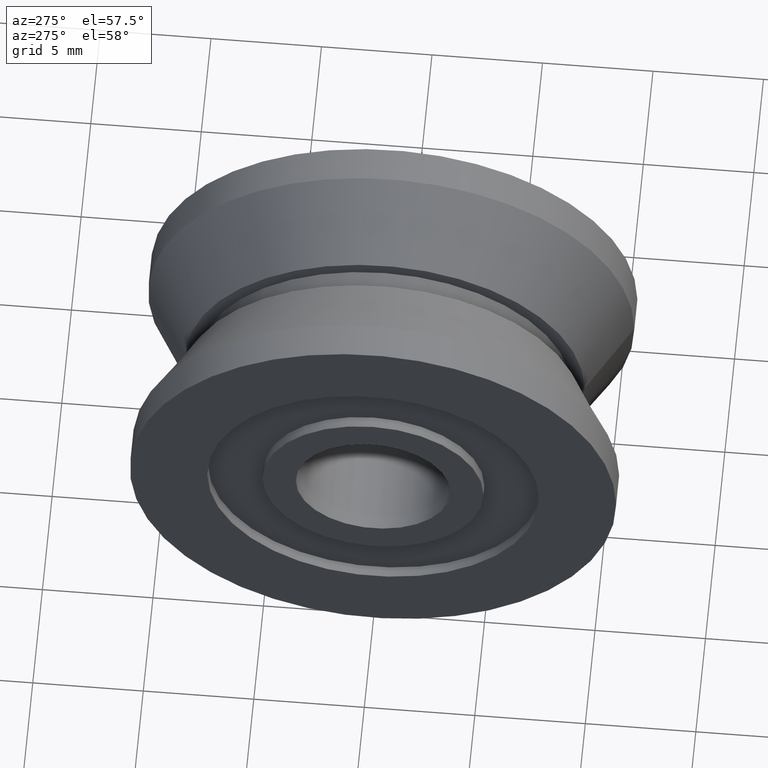
[diagram: clean part render]
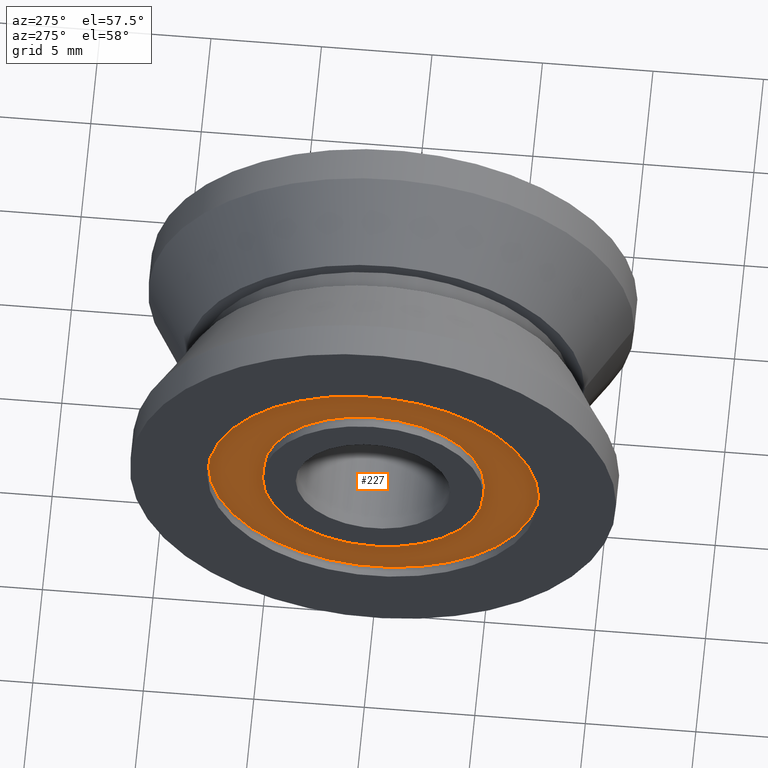
[diagram: same view with one face highlighted and labeled with its STEP entity id]
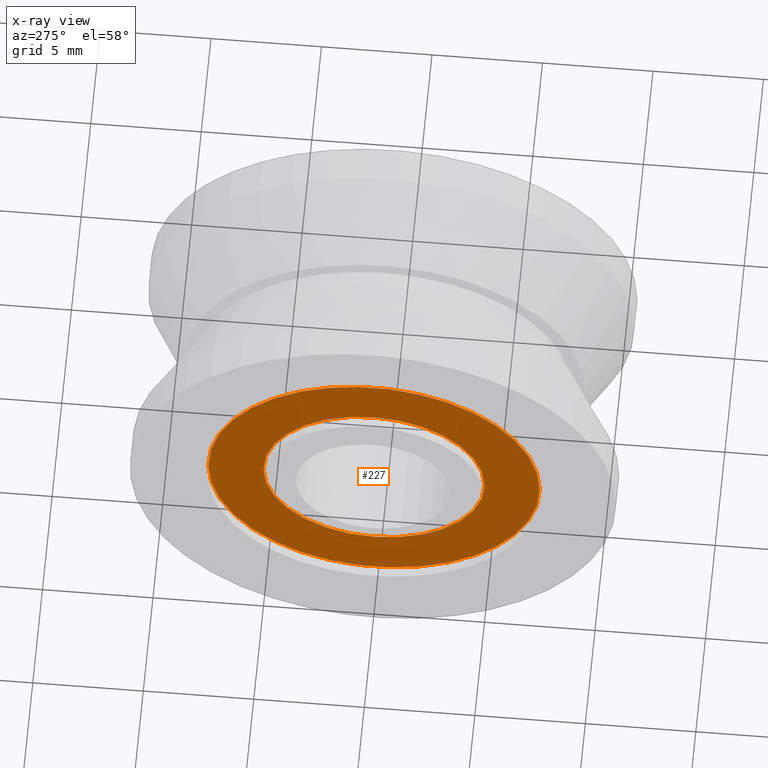
[diagram: x-ray of the same camera — body ghosted, the highlighted face saturated]
A machine part, auxiliary view. The second image highlights one B-rep face of the part: STEP entity #227.
The next image is the same camera in x-ray: the body ghosted, the highlighted face saturated — about 0% of this face is hidden behind the body in this view.
In plain terms, the highlighted planar face has unit normal (-1, 0, 0).
Its self-contained STEP definition (entity closure, byte-faithful):
#46=FACE_BOUND('',#75,.T.);
#55=FACE_OUTER_BOUND('',#74,.T.);
#74=EDGE_LOOP('',(#167));
#75=EDGE_LOOP('',(#168));
#99=CIRCLE('',#270,5.);
#100=CIRCLE('',#272,7.5);
#117=VERTEX_POINT('',#393);
#118=VERTEX_POINT('',#397);
#135=EDGE_CURVE('',#117,#117,#99,.T.);
#137=EDGE_CURVE('',#118,#118,#100,.T.);
#167=ORIENTED_EDGE('',*,*,#137,.F.);
#168=ORIENTED_EDGE('',*,*,#135,.T.);
#218=PLANE('',#271);
#227=ADVANCED_FACE('',(#55,#46),#218,.T.);
#270=AXIS2_PLACEMENT_3D('',#394,#312,#313);
#271=AXIS2_PLACEMENT_3D('',#396,#315,#316);
#272=AXIS2_PLACEMENT_3D('',#398,#317,#318);
#312=DIRECTION('center_axis',(1.,0.,0.));
#313=DIRECTION('ref_axis',(0.,1.,0.));
#315=DIRECTION('center_axis',(-1.,0.,0.));
#316=DIRECTION('ref_axis',(0.,0.,1.));
#317=DIRECTION('center_axis',(1.,0.,0.));
#318=DIRECTION('ref_axis',(0.,1.,0.));
#393=CARTESIAN_POINT('',(-5.00000000000001,-5.,-6.12323399573677E-16));
#394=CARTESIAN_POINT('Origin',(-5.00000000000001,0.,0.));
#396=CARTESIAN_POINT('Origin',(-5.00000000000001,6.25,0.));
#397=CARTESIAN_POINT('',(-5.00000000000001,-7.5,-9.18485099360515E-16));
#398=CARTESIAN_POINT('Origin',(-5.00000000000001,0.,0.));